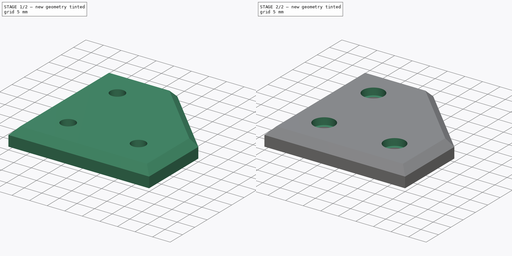
[diagram: build sequence overview — one tinted view per stage of 2, left to right]
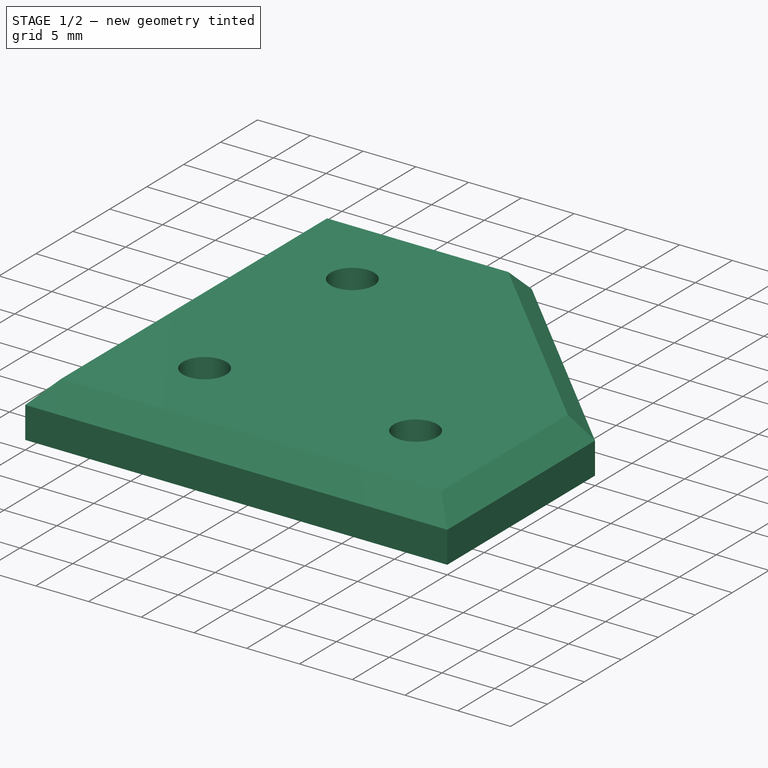
[diagram: stage 1 of 2 — iso view after this stage's code; geometry added in this stage tinted green]
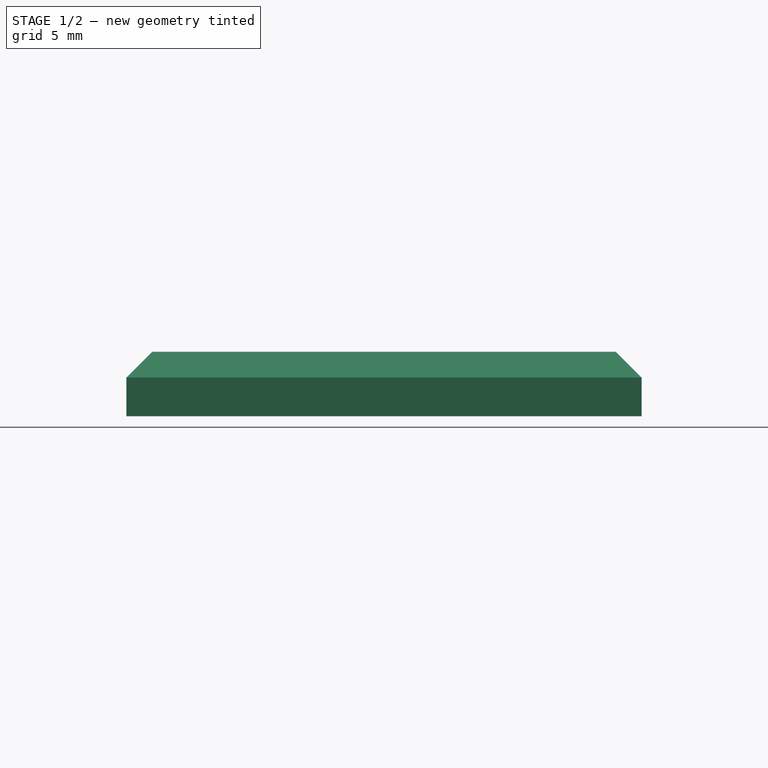
[diagram: stage 1 of 2 — front view after this stage's code; geometry added in this stage tinted green]
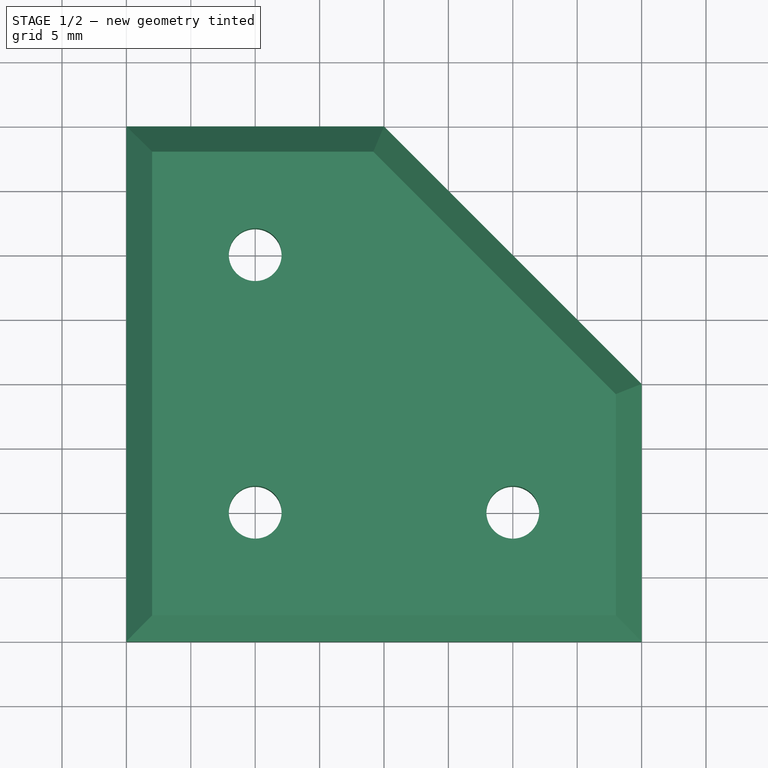
[diagram: stage 1 of 2 — top view after this stage's code; geometry added in this stage tinted green]
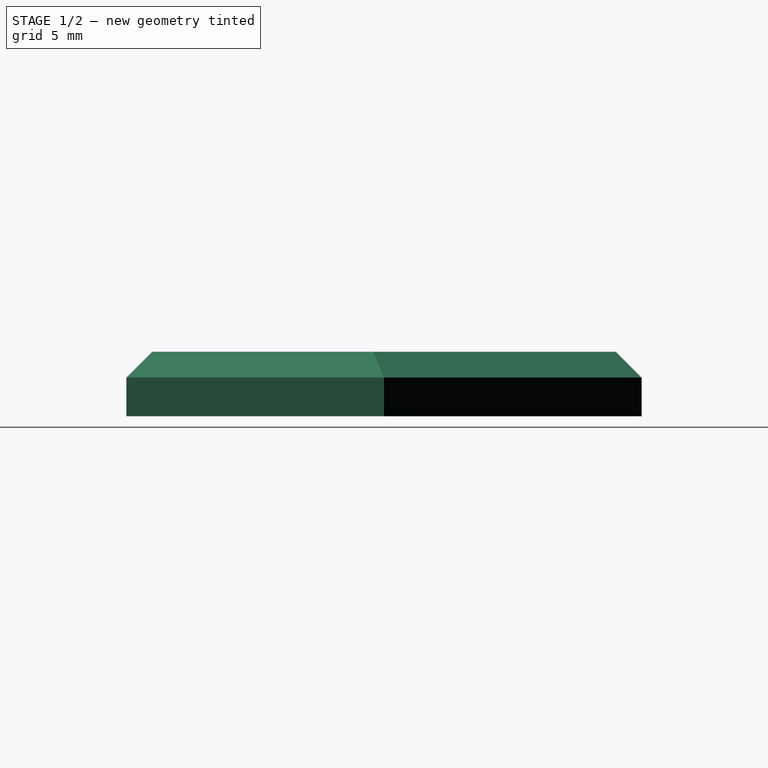
[diagram: stage 1 of 2 — right view after this stage's code; geometry added in this stage tinted green]
FCSTD DOCUMENT  (FreeCAD 0.14R3702 (Git))
Label: 2020CornerPieceTrap
License: CC-BY 3.0
LicenseURL: http://creativecommons.org/licenses/by/3.0/
objects: Sketcher::SketchObject×2, Part::Extrusion×1, Part::Chamfer×1, PartDesign::Pocket×1
note: 6 computed .brp shape members not serialized (recipe doc carries the construction recipe); baked Part::Feature solids carry a one-line shape summary decoded from their .brp

FEATURE [Sketcher::SketchObject] Sketch
  sketch-geometry (11):
    g0: LineSegment StartX=0 StartY=0 StartZ=0 EndX=0 EndY=40 EndZ=0
    g1: LineSegment StartX=0 StartY=40 StartZ=0 EndX=20 EndY=40 EndZ=0
    g2: LineSegment StartX=0 StartY=0 StartZ=0 EndX=40 EndY=0 EndZ=0
    g3: LineSegment StartX=40 StartY=0 StartZ=0 EndX=40 EndY=20 EndZ=0
    g4: LineSegment StartX=20 StartY=40 StartZ=0 EndX=40 EndY=20 EndZ=0
    g5: LineSegment [constr] StartX=10 StartY=0 StartZ=0 EndX=10 EndY=10 EndZ=0
    g6: Circle CenterX=10 CenterY=10 CenterZ=0 NormalX=0 NormalY=0 NormalZ=1 Radius=2.05
    g7: LineSegment [constr] StartX=10 StartY=10 StartZ=0 EndX=10 EndY=30 EndZ=0
    g8: Circle CenterX=10 CenterY=30 CenterZ=0 NormalX=0 NormalY=0 NormalZ=1 Radius=2.05
    g9: LineSegment [constr] StartX=10 StartY=10 StartZ=0 EndX=30 EndY=10 EndZ=0
    g10: Circle CenterX=30 CenterY=10 CenterZ=0 NormalX=0 NormalY=0 NormalZ=1 Radius=2.05
  constraints (26):
    c: Coincident(g0,g-1)
    c: Vertical(g0)
    c: Coincident(g1,g0)
    c: Horizontal(g1)
    c: DistanceX(g1) = 20
    c: DistanceY(g0) = 40
    c: Horizontal(g2)
    c: Equal(g0,g2)
    c: Vertical(g3)
    c: Coincident(g4,g1)
    c: Coincident(g4,g3)
    c: Equal(g3,g1)
    c: PointOnObject(g5,g2)
    c: Vertical(g5)
    c: DistanceY(g5) = 10
    c: Coincident(g6,g5)
    c: Radius(g6) = 2.05
    c: PointOnObject(g7,g5)
    c: Vertical(g7)
    c: DistanceY(g7) = 20
    c: Coincident(g9,g5)
    c: Horizontal(g9)
    c: Equal(g9,g7)
    c: Coincident(g10,g9)
    c: Equal(g6,g8)
    c: Equal(g10,g6)
FEATURE [Part::Extrusion] Extrude001  label="2020CornerpieceTrap"
  Base = -> Sketch
  Dir = (0,0,5)
  Solid = true
FEATURE [Part::Chamfer] Chamfer
  Base = -> Extrude001
  Edges = 5 edges r=2: [Edge4,Edge7,Edge10,Edge13,Edge15]
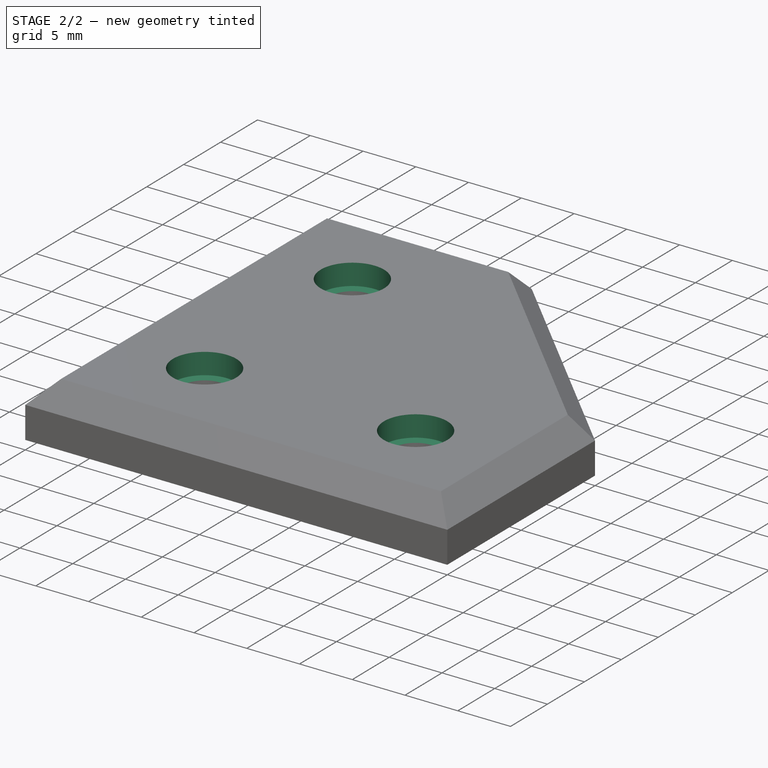
[diagram: stage 2 of 2 — iso view after this stage's code; geometry added in this stage tinted green]
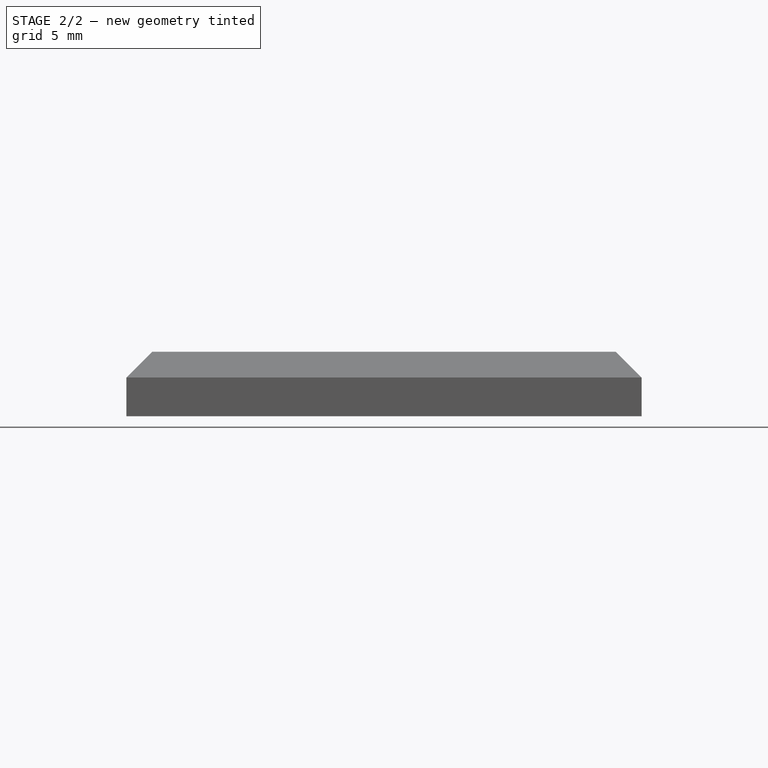
[diagram: stage 2 of 2 — front view after this stage's code; geometry added in this stage tinted green]
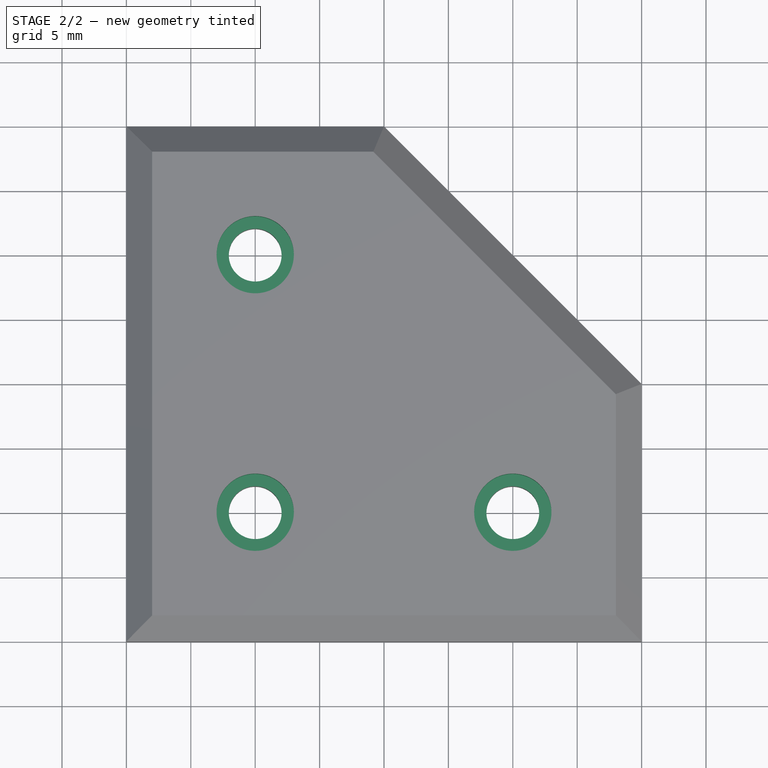
[diagram: stage 2 of 2 — top view after this stage's code; geometry added in this stage tinted green]
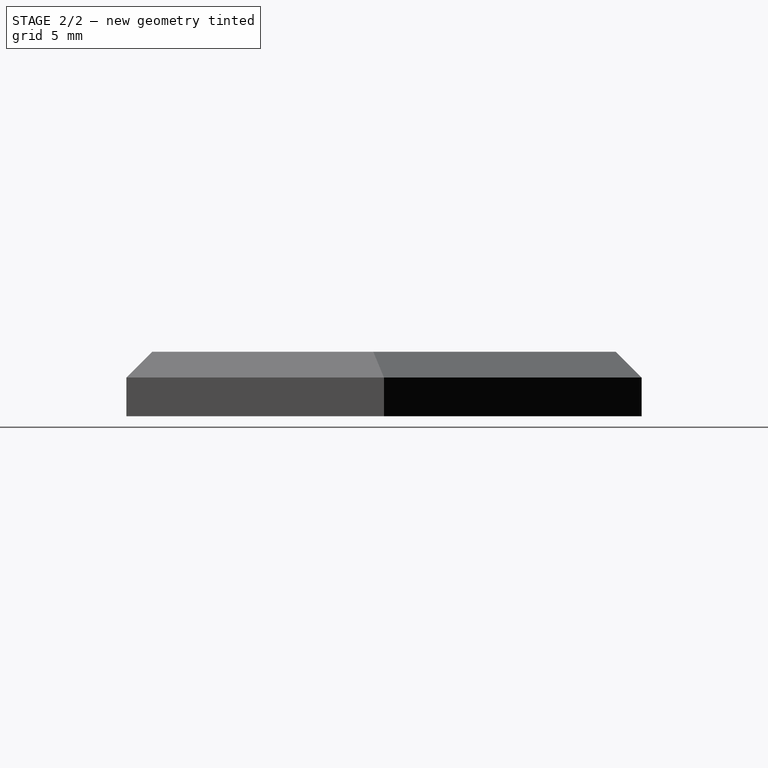
[diagram: stage 2 of 2 — right view after this stage's code; geometry added in this stage tinted green]
FEATURE [Sketcher::SketchObject] Sketch001
  Placement = pos=(0,0,5) rot=(0,0,1;0rad)
  Support = -> Chamfer [Face8]
  sketch-geometry (6):
    g0: LineSegment [constr] StartX=10 StartY=0 StartZ=0 EndX=10 EndY=10 EndZ=0
    g1: LineSegment [constr] StartX=10 StartY=10 StartZ=0 EndX=10 EndY=30 EndZ=0
    g2: LineSegment [constr] StartX=10 StartY=10 StartZ=0 EndX=30 EndY=10 EndZ=0
    g3: Circle CenterX=10 CenterY=30 CenterZ=0 NormalX=0 NormalY=0 NormalZ=1 Radius=3
    g4: Circle CenterX=10 CenterY=10 CenterZ=0 NormalX=0 NormalY=0 NormalZ=1 Radius=3
    g5: Circle CenterX=30 CenterY=10 CenterZ=0 NormalX=0 NormalY=0 NormalZ=1 Radius=3
  constraints (14):
    c: PointOnObject(g0,g-1)
    c: Vertical(g0)
    c: DistanceY(g0) = 10
    c: Coincident(g1,g0)
    c: Vertical(g1)
    c: DistanceY(g1) = 20
    c: Coincident(g2,g0)
    c: Horizontal(g2)
    c: DistanceX(g2) = 20
    c: Coincident(g3,g1)
    c: Radius(g3) = 3
    c: Coincident(g5,g2)
    c: Equal(g3,g4)
    c: Equal(g4,g5)
FEATURE [PartDesign::Pocket] Pocket
  Length = 2
  Sketch = -> Sketch001
  Type = 0
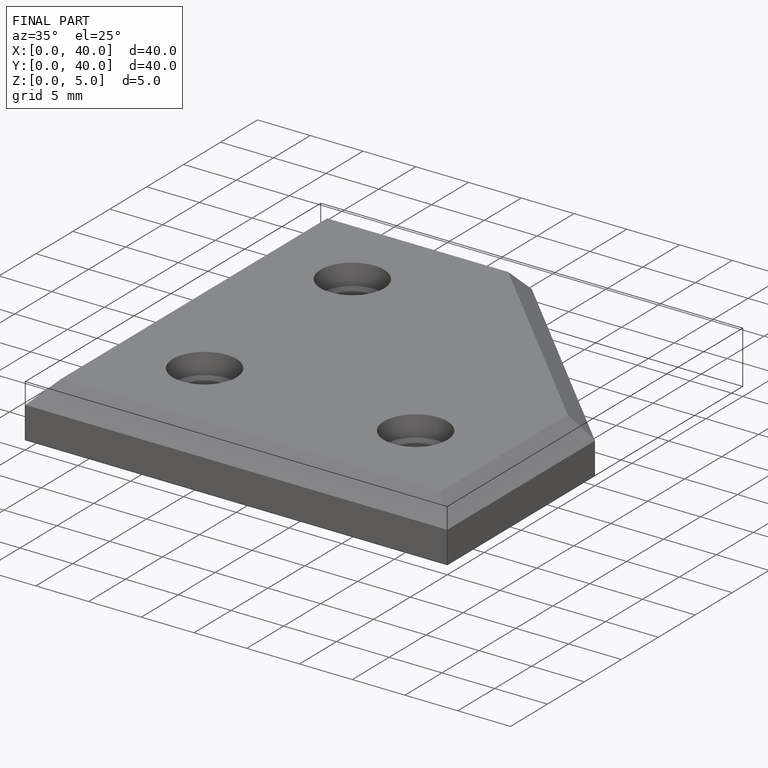
[diagram: finished part — iso view with bounding-box wireframe]
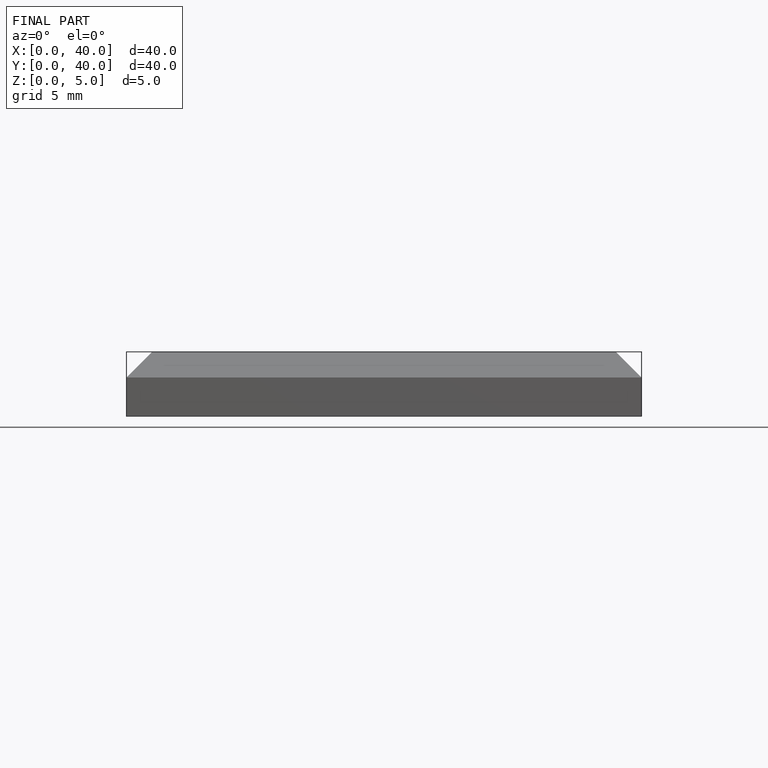
[diagram: finished part — front view with bounding-box wireframe]
